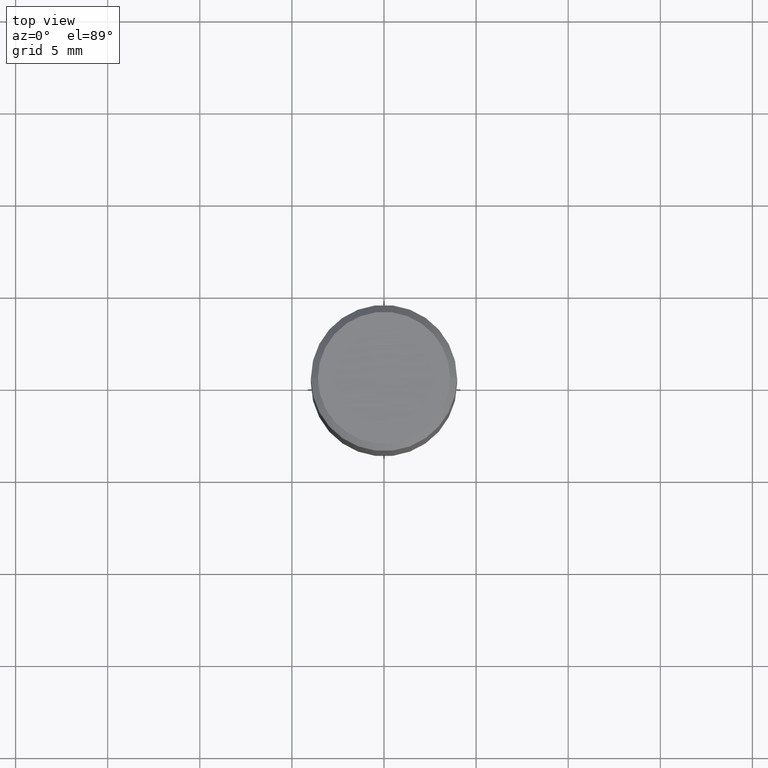
[diagram: clean part render]
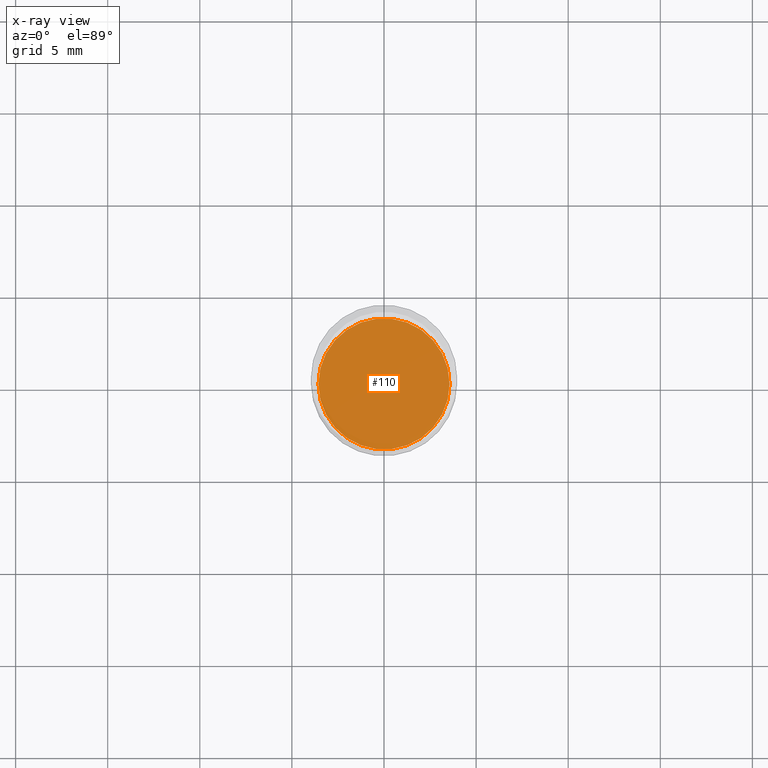
[diagram: x-ray — body ghosted, one internal face saturated and labeled with its STEP entity id]
A machine part, top view, then the same camera in x-ray: the body is ghosted and one INTERNAL B-rep face — a face not visible from any outside direction — is saturated and labeled: STEP entity #110.
In plain terms, the highlighted planar face has unit normal (-0, 0, 1).
Its self-contained STEP definition (entity closure, byte-faithful):
#2 = DIRECTION ( 'NONE',  ( 1.000000000000000000, -6.982962677686265922E-15, 4.876176775795935793E-29 ) ) ;
#49 = CARTESIAN_POINT ( 'NONE',  ( -0.1401000000000000023, -1.620491404158347708E-15, -0.7500000000000001110 ) ) ;
#61 = EDGE_CURVE ( 'NONE', #139, #410, #219, .T. ) ;
#100 = ORIENTED_EDGE ( 'NONE', *, *, #61, .F. ) ;
#109 = DIRECTION ( 'NONE',  ( -2.445468806185136597E-29, 3.491481338843145583E-15, 1.000000000000000000 ) ) ;
#110 = ADVANCED_FACE ( 'NONE', ( #221 ), #151, .F. ) ;
#134 = CIRCLE ( 'NONE', #385, 0.1401000000000000023 ) ;
#139 = VERTEX_POINT ( 'NONE', #49 ) ;
#145 = CARTESIAN_POINT ( 'NONE',  ( 1.834101604638852448E-29, -2.618611004132359088E-15, -0.7500000000000001110 ) ) ;
#151 = PLANE ( 'NONE',  #393 ) ;
#206 = EDGE_LOOP ( 'NONE', ( #462, #100 ) ) ;
#219 = CIRCLE ( 'NONE', #414, 0.1401000000000000023 ) ;
#221 = FACE_OUTER_BOUND ( 'NONE', #206, .T. ) ;
#232 = DIRECTION ( 'NONE',  ( 1.000000000000000000, -6.982962677686269077E-15, 0.000000000000000000 ) ) ;
#270 = CARTESIAN_POINT ( 'NONE',  ( 1.834101604638852448E-29, -2.618611004132359088E-15, -0.7500000000000001110 ) ) ;
#287 = DIRECTION ( 'NONE',  ( 1.000000000000000000, -6.982962677686269077E-15, 0.000000000000000000 ) ) ;
#307 = CARTESIAN_POINT ( 'NONE',  ( 0.1401000000000000023, -3.596924075276205581E-15, -0.7500000000000001110 ) ) ;
#323 = CARTESIAN_POINT ( 'NONE',  ( 1.834101604638852448E-29, -2.618611004132359088E-15, -0.7500000000000001110 ) ) ;
#350 = EDGE_CURVE ( 'NONE', #410, #139, #134, .T. ) ;
#385 = AXIS2_PLACEMENT_3D ( 'NONE', #270, #403, #232 ) ;
#393 = AXIS2_PLACEMENT_3D ( 'NONE', #323, #436, #2 ) ;
#403 = DIRECTION ( 'NONE',  ( -2.445468806185136597E-29, 3.491481338843145583E-15, 1.000000000000000000 ) ) ;
#410 = VERTEX_POINT ( 'NONE', #307 ) ;
#414 = AXIS2_PLACEMENT_3D ( 'NONE', #145, #109, #287 ) ;
#436 = DIRECTION ( 'NONE',  ( -2.438088387897960049E-29, 3.491481338843145188E-15, 1.000000000000000000 ) ) ;
#462 = ORIENTED_EDGE ( 'NONE', *, *, #350, .F. ) ;